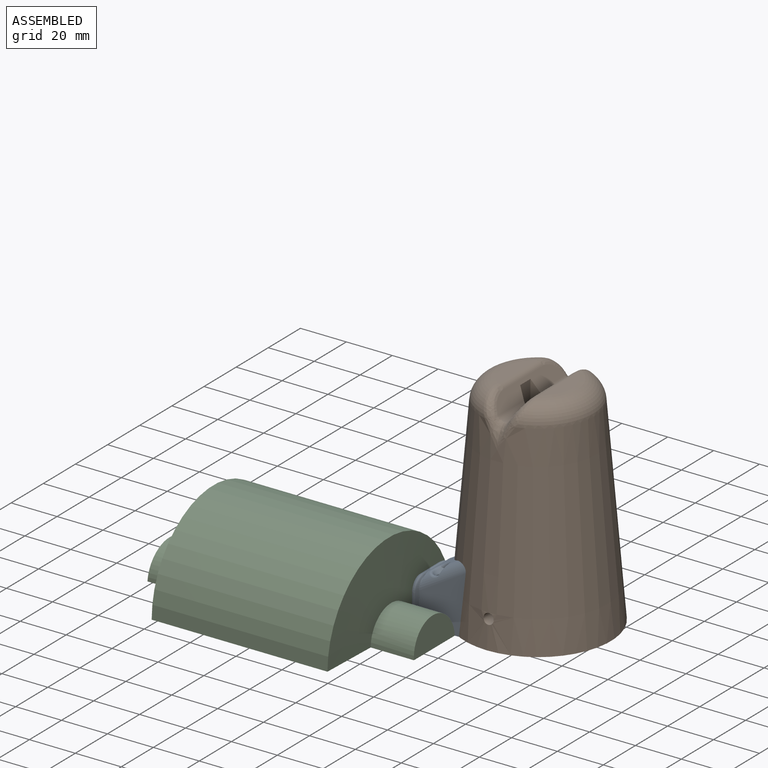
[diagram: assembled view]
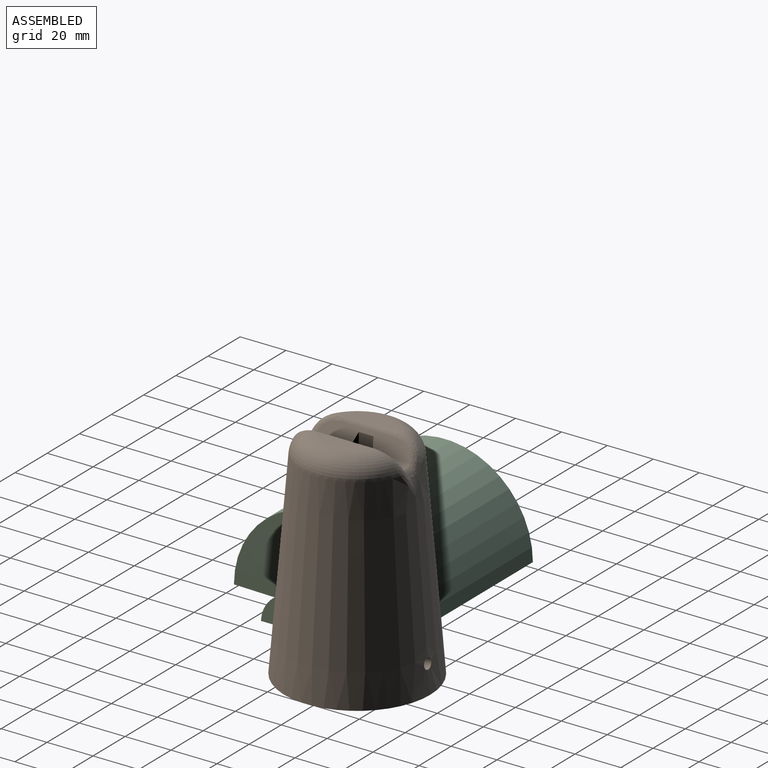
[diagram: assembled view, second angle]
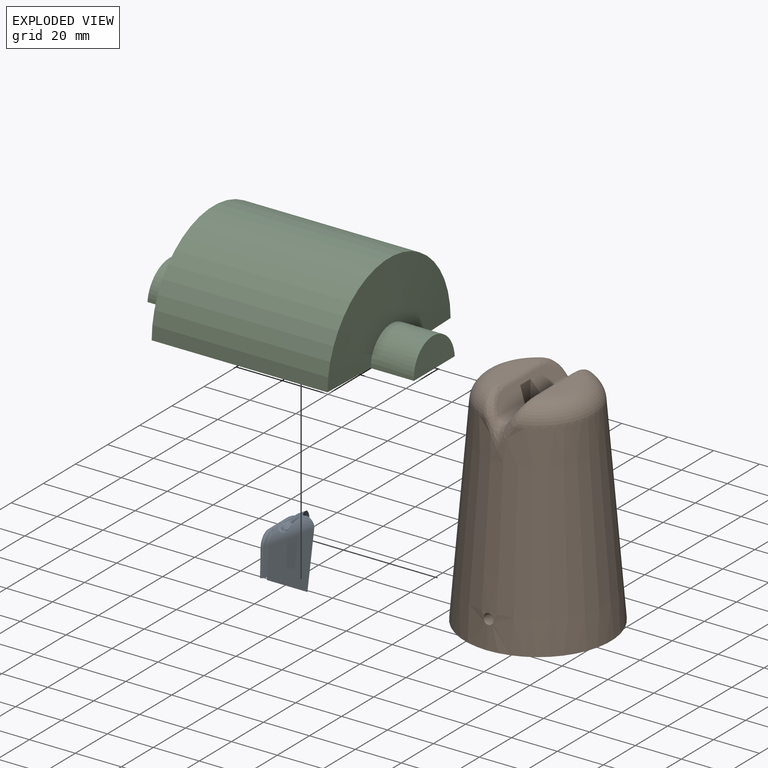
[diagram: exploded view]
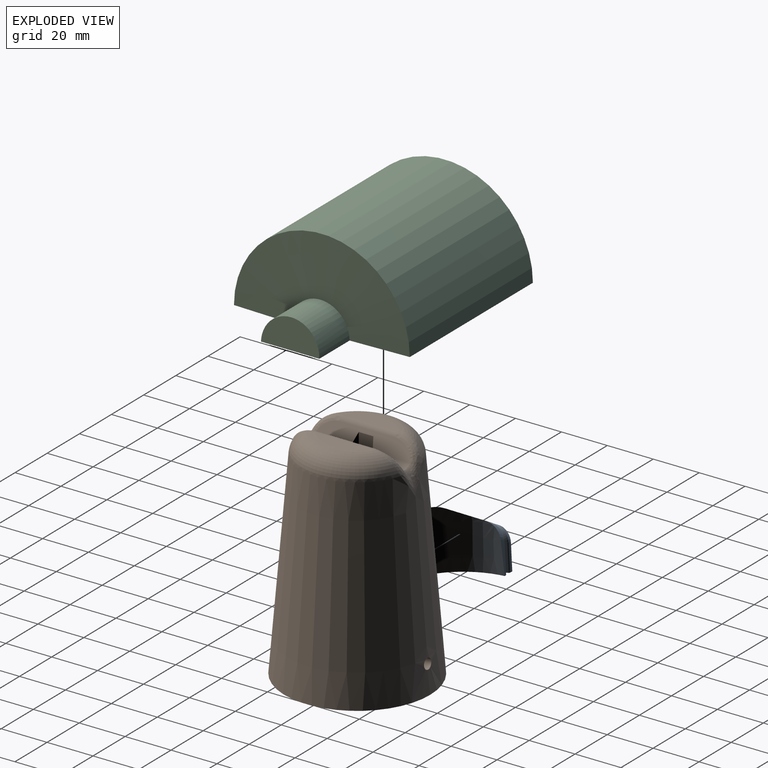
[diagram: exploded view, second angle]
ASSEMBLY  parts=3 mates=2
PART A: 44 faces, bbox 29.1x31.5x40.7 mm
  f0: cylinder r=5.08mm len=22.69mm, axis (-0.86,-0.03,-0.51), area 111.3mm2, adj f7,f8,f11,f20,f41,f43
  f1: plane 12.53x1.95mm, normal (0,1,0.05), area 12.4mm2, adj f4,f5,f12,f28
  f2: plane 13.94x2.44mm, normal (-0.51,0,0.86), area 13.3mm2, adj f4,f9,f12,f34,f36
  f3: plane 14.24x3.15mm, normal (0,-1,0.05), area 3.5mm2, adj f5,f9,f12,f29
  f4: cylinder r=5.08mm len=6.33mm, axis (-0.86,0.03,-0.51), area 10.5mm2, adj f1,f2,f12,f30,f32
  f5: plane 24.1x21.53mm, normal (0,0,-1), area 221.9mm2, adj f1,f3,f6,f8,f11,f12,f13,f14
  f6: plane 14.67x2.29mm, normal (0,1,0.05), area 21.9mm2, adj f5,f10,f11,f14,f16
  f7: plane 13.24x12.87mm, normal (-0.51,0,0.86), area 69.6mm2, adj f0,f10,f11,f18,f40,f42
  f8: plane 24.96x19.78mm, normal (0,-1,0.05), area 351.5mm2, adj f0,f5,f11,f20,f22
  f9: cylinder r=5.08mm len=5.91mm, axis (-0.86,-0.03,-0.51), area 5mm2, adj f2,f3,f12,f31,f33,f35
  f10: cylinder r=5.08mm len=9.31mm, axis (-0.86,0.03,-0.51), area 24.4mm2, adj f6,f7,f11,f16,f18
  f11: cone r=23.81mm half-angle=4.8deg, axis (0,0,-1), area 701.5mm2, adj f0,f5,f6,f7,f8,f10
  f12: cone r=12.77mm half-angle=88deg, axis (-1,0,0), area 371.5mm2, adj f1,f2,f3,f4,f5,f9
  f13: plane 12.64x1.9mm, normal (0.87,0.5,0.03), area 17.9mm2, adj f5,f15,f23,f28,f30
  f14: plane 12.64x2.28mm, normal (-0.87,0.5,0.03), area 23.5mm2, adj f5,f6,f16,f23
  f15: bspline ~6.75x6.39mm, area 5.4mm2, adj f13,f17,f25,f32,f34
  f16: bspline ~6.85x6.39mm, area 18.3mm2, adj f6,f10,f14,f18,f25
  f17: plane 12.47x0.44mm, normal (0.87,0,0.5), area 6.3mm2, adj f15,f19,f27,f35,f36
  f18: plane 12.58x2.64mm, normal (-0.87,0,0.5), area 37.9mm2, adj f7,f10,f16,f20,f27
  f19: bspline ~5.35x4.68mm, area 5.5mm2, adj f17,f21,f26,f33
  f20: bspline ~6.82x6.23mm, area 18.3mm2, adj f0,f8,f18,f22,f26
  f21: plane 12.67x1.97mm, normal (0.87,-0.5,0.03), area 19.1mm2, adj f5,f19,f24,f29,f31
  f22: plane 12.64x2.27mm, normal (-0.87,-0.5,0.03), area 23.7mm2, adj f5,f8,f20,f24
  f23: cylinder r=0.25mm len=12.64mm, axis (0,0.05,-1), area 6.7mm2, adj f5,f13,f14,f25
  f24: bspline ~21.6x1.45mm, area 5.8mm2, adj f5,f21,f22,f26
  f25: bspline ~4.32x3.82mm, area 3.1mm2, adj f15,f16,f23,f27
  f26: bspline ~6.09x5.64mm, area 3.1mm2, adj f19,f20,f24,f27
  f27: cylinder r=0.25mm len=12.45mm, axis (0,1,0), area 6.6mm2, adj f17,f18,f25,f26
  f28: cylinder r=0.76mm len=11.72mm, axis (0,0.05,-1), area 9.3mm2, adj f1,f5,f13,f30
  f29: cylinder r=0.76mm len=11.72mm, axis (0,0.05,1), area 9.3mm2, adj f3,f5,f21,f31
  f30: bspline ~1.99x0.76mm, area 0.9mm2, adj f4,f13,f28,f32
  f31: bspline ~1.04x0.73mm, area 0.8mm2, adj f9,f21,f29,f33
  f32: bspline ~5.43x5.4mm, area 7.9mm2, adj f4,f15,f30,f34
  f33: bspline ~5.49x5.47mm, area 7.9mm2, adj f9,f19,f31,f35
  f34: bspline ~1.13x1.09mm, area 0.1mm2, adj f2,f15,f32,f36
  f35: bspline ~1.05x0.38mm, area 0mm2, adj f9,f17,f33,f36
  f36: cylinder r=0.76mm len=12.43mm, axis (0,-1,0), area 14.9mm2, adj f2,f17,f34,f35
  f37: cylinder r=1.63mm len=18.35mm, axis (0,0,1), area 188.1mm2, adj f5,f38
  f38: cone r=1.63mm half-angle=41deg, axis (0,0,1), area 31mm2, adj f37,f39,f40,f41,f42,f43
  f39: cylinder r=3.24mm len=5.81mm, axis (0,0,1), area 15.1mm2, adj f38,f40,f41
  f40: bspline ~6.28x4.56mm, area 11.2mm2, adj f7,f38,f39,f41,f42
  f41: bspline ~5.45x5.06mm, area 9.1mm2, adj f0,f38,f39,f40,f43
  f42: bspline ~5.03x2.51mm, area 4.9mm2, adj f7,f38,f40,f43
  f43: bspline ~7.04x4.86mm, area 12.5mm2, adj f0,f38,f41,f42
PART B: 34 faces, bbox 63.8x63.8x95.6 mm
  f0: cylinder r=3.17mm len=15.94mm, axis (0,1,0), area 100.7mm2, adj f9,f10,f21,f26,f27
  f1: plane 23.87x5.88mm, normal (0,0,1), area 98mm2, adj f2,f16
  f2: torus R=15.05mm, axis (0,0,1), area 664.5mm2, adj f1,f4,f14,f18
  f3: plane 23.87x5.88mm, normal (0,0,1), area 98mm2, adj f8,f15
  f4: cone r=23.81mm half-angle=4.8deg, axis (0,0,-1), area 15183.9mm2, adj f2,f5,f8,f11,f12,f19,f20,f32
  f5: plane 63.5x63.5mm, normal (0,0,-1), area 1246.3mm2, adj f4,f6
  f6: cone r=24.73mm half-angle=4.8deg, axis (0,0,-1), area 10687.9mm2, adj f5,f7,f32,f33
  f7: plane 36.22x36.22mm, normal (0,0,-1), area 998.8mm2, adj f6,f31
  f8: torus R=15.05mm, axis (0,0,1), area 664.5mm2, adj f3,f4,f13,f17
  f9: plane 41.4x6.35mm, normal (-0.87,0,0.5), area 228.6mm2, adj f0,f12,f14,f16,f18,f20,f22,f24
  f10: plane 41.4x6.35mm, normal (0.87,0,0.5), area 228.6mm2, adj f0,f11,f13,f15,f17,f19,f22,f25
  f11: bspline ~20.15x14.32mm, area 29.6mm2, adj f4,f10,f13,f21
  f12: bspline ~20.15x14.32mm, area 29.6mm2, adj f4,f9,f14,f21
  f13: bspline ~14.14x10.94mm, area 65.6mm2, adj f8,f10,f11,f15
  f14: bspline ~14.14x10.94mm, area 65.6mm2, adj f2,f9,f12,f16
  f15: cylinder r=3.17mm len=23.87mm, axis (0,1,0), area 79.4mm2, adj f3,f10,f13,f17
  f16: cylinder r=3.17mm len=23.87mm, axis (0,1,0), area 79.4mm2, adj f1,f9,f14,f18
  f17: bspline ~14.14x10.94mm, area 65.6mm2, adj f8,f10,f15,f19
  f18: bspline ~14.14x10.94mm, area 65.6mm2, adj f2,f9,f16,f20
  f19: bspline ~20.15x14.32mm, area 29.6mm2, adj f4,f10,f17,f23
  f20: bspline ~20.15x14.32mm, area 29.6mm2, adj f4,f9,f18,f23
  f21: bspline ~10.86x5.52mm, area 20.1mm2, adj f0,f11,f12
  f22: cylinder r=3.17mm len=15.94mm, axis (0,1,0), area 100.7mm2, adj f9,f10,f23,f28,f29
  f23: bspline ~10.86x5.52mm, area 20.1mm2, adj f19,f20,f22
  f24: plane 10.13x6.35mm, normal (-1,0,0), area 64.3mm2, adj f9,f26,f29,f30
  f25: plane 10.13x6.35mm, normal (1,0,0), area 64.3mm2, adj f10,f27,f28,f30
  f26: plane 10.38x5.75mm, normal (-0.5,0.87,0), area 38mm2, adj f0,f9,f24,f27,f30
  f27: plane 10.38x5.75mm, normal (0.5,0.87,0), area 38mm2, adj f0,f10,f25,f26,f30
  f28: plane 10.38x5.75mm, normal (0.5,-0.87,0), area 38mm2, adj f10,f22,f25,f29,f30
  f29: plane 10.38x5.75mm, normal (-0.5,-0.87,0), area 38mm2, adj f9,f22,f24,f28,f30
  f30: plane 12.7x11mm, normal (0,0,1), area 73.1mm2, adj f24,f25,f26,f27,f28,f29,f31
  f31: cylinder r=3.17mm len=6.35mm, axis (0,0,1), area 51.4mm2, adj f7,f30
  f32: cylinder r=2.25mm len=7.4mm, axis (0,-1,0), area 101mm2, adj f4,f6
  f33: cylinder r=2.25mm len=7.18mm, axis (0,-1,0), area 97.6mm2, adj f4,f6
PART C: 30 faces, bbox 116.1x76.6x38.3 mm
  f0: plane 5.59x5.49mm, normal (0.87,0.5,0), area 35.4mm2, adj f1,f5,f6,f7
  f1: plane 5.59x5.49mm, normal (0.87,-0.5,0), area 35.4mm2, adj f0,f2,f6,f7
  f2: plane 6.45x5.49mm, normal (0,-1,0), area 35.4mm2, adj f1,f3,f6,f7
  f3: plane 5.59x5.49mm, normal (-0.87,-0.5,0), area 35.4mm2, adj f2,f4,f6,f7
  f4: plane 5.59x5.49mm, normal (-0.87,0.5,0), area 35.4mm2, adj f3,f5,f6,f7
  f5: plane 6.45x5.49mm, normal (0,1,0), area 35.4mm2, adj f0,f4,f6,f7
  f6: plane 12.9x11.17mm, normal (0,0,1), area 72.3mm2, adj f0,f1,f2,f3,f4,f5,f8
  f7: plane 12.9x11.17mm, normal (0,0,-1), area 72.3mm2, adj f0,f1,f2,f3,f4,f5,f27
  f8: cylinder r=3.38mm len=6.76mm, axis (0,0,1), area 76.6mm2, adj f6,f22
  f9: plane 5.59x5.49mm, normal (-0.87,-0.5,0), area 35.4mm2, adj f10,f14,f15,f16
  f10: plane 5.59x5.49mm, normal (-0.87,0.5,0), area 35.4mm2, adj f9,f11,f15,f16
  f11: plane 6.45x5.49mm, normal (0,1,0), area 35.4mm2, adj f10,f12,f15,f16
  f12: plane 5.59x5.49mm, normal (0.87,0.5,0), area 35.4mm2, adj f11,f13,f15,f16
  f13: plane 5.59x5.49mm, normal (0.87,-0.5,0), area 35.4mm2, adj f12,f14,f15,f16
  f14: plane 6.45x5.49mm, normal (0,-1,0), area 35.4mm2, adj f9,f13,f15,f16
  f15: plane 12.9x11.17mm, normal (0,0,1), area 72.3mm2, adj f9,f10,f11,f12,f13,f14,f17
  f16: plane 12.9x11.17mm, normal (0,0,-1), area 72.3mm2, adj f9,f10,f11,f12,f13,f14,f29
  f17: cylinder r=3.38mm len=6.76mm, axis (0,0,1), area 76.6mm2, adj f15,f22
  f18: cylinder r=12.7mm len=25.4mm, axis (-1,0,0), area 735mm2, adj f21,f22,f23
  f19: cylinder r=12.7mm len=25.4mm, axis (-1,0,0), area 735mm2, adj f20,f22,f24
  f20: plane 25.4x12.7mm, normal (-1,0,0.05), area 253.7mm2, adj f19,f22
  f21: plane 25.4x12.7mm, normal (1,0,0.05), area 253.7mm2, adj f18,f22
  f22: plane 116.07x76.6mm, normal (0,0,-1), area 6843.8mm2, adj f8,f17,f18,f19,f20,f21,f23,f24
  f23: cone r=12.77mm half-angle=88deg, axis (-1,0,0), area 2051.9mm2, adj f18,f22,f25
  f24: cone r=38.3mm half-angle=88deg, axis (1,0,0), area 2051.9mm2, adj f19,f22,f25
  f25: cylinder r=38.3mm len=76.6mm, axis (-1,0,0), area 9215.8mm2, adj f22,f23,f24
  f26: cone r=0mm half-angle=59deg, axis (0,0,-1), area 41.8mm2, adj f27
  f27: cylinder r=3.38mm len=16.31mm, axis (0,0,-1), area 346.1mm2, adj f7,f26
  f28: cone r=0mm half-angle=59deg, axis (0,0,-1), area 41.8mm2, adj f29
  f29: cylinder r=3.38mm len=16.31mm, axis (0,0,-1), area 346.1mm2, adj f16,f28
PLACE A at identity
PLACE B t=(74.59,41.33,95.25)mm
PLACE C t=(0,0.51,0)mm
MATE parallel A.f5 <-> C.f22  axis (0,0,1) through (39.19,13.21,0)mm
MATE planar C.f22 <-> B.f2  axis (0,0,-1) through (0,0.51,0)mm
